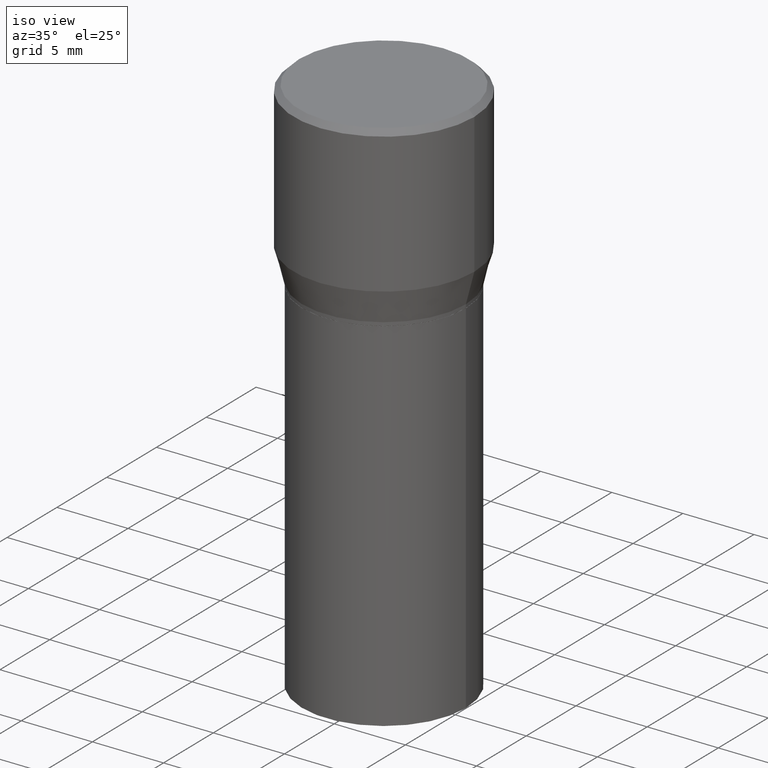
[diagram: clean part render]
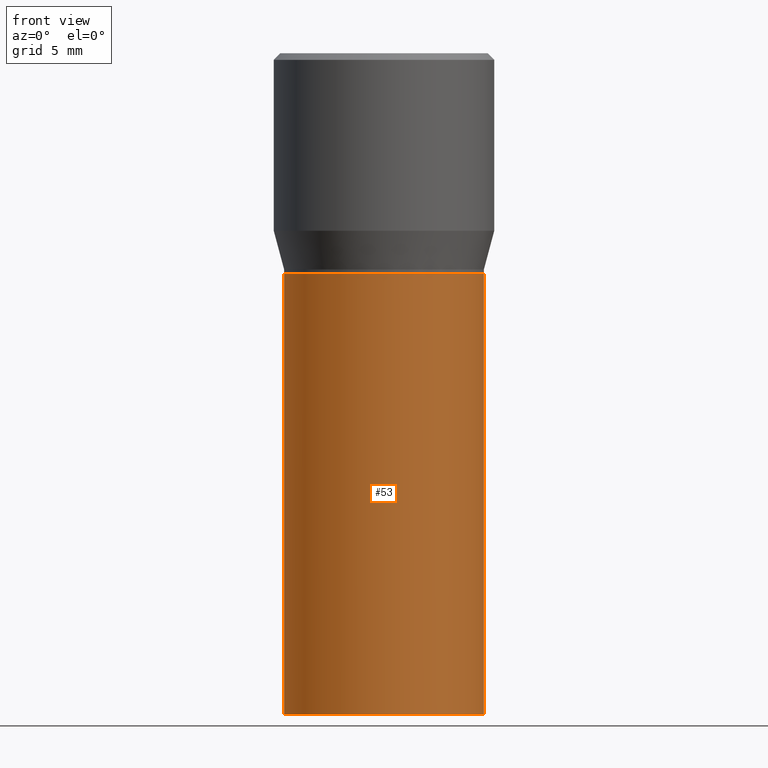
[diagram: tour spotlight — one face highlighted and labeled with its STEP entity id]
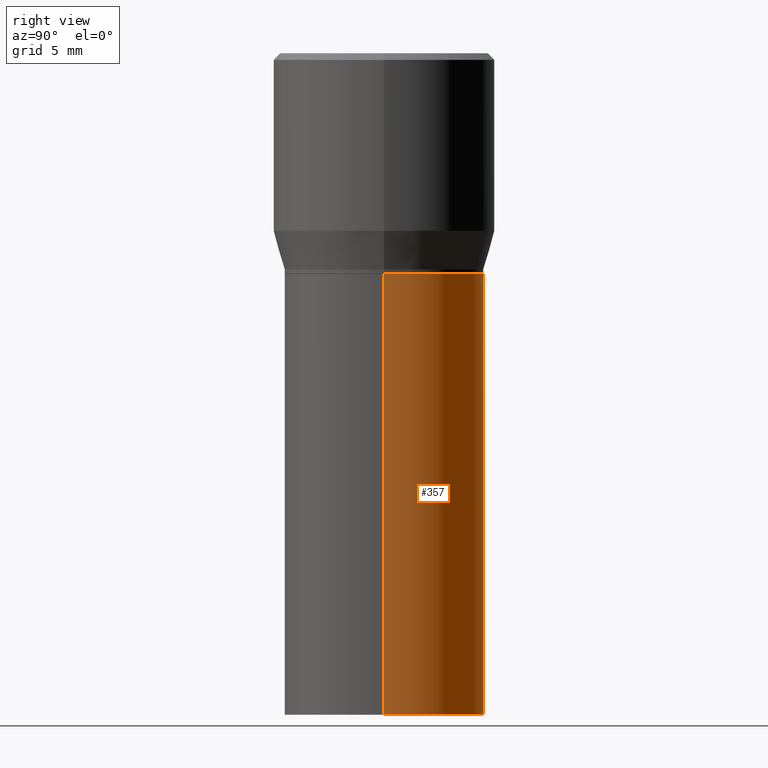
[diagram: tour spotlight — one face highlighted and labeled with its STEP entity id]
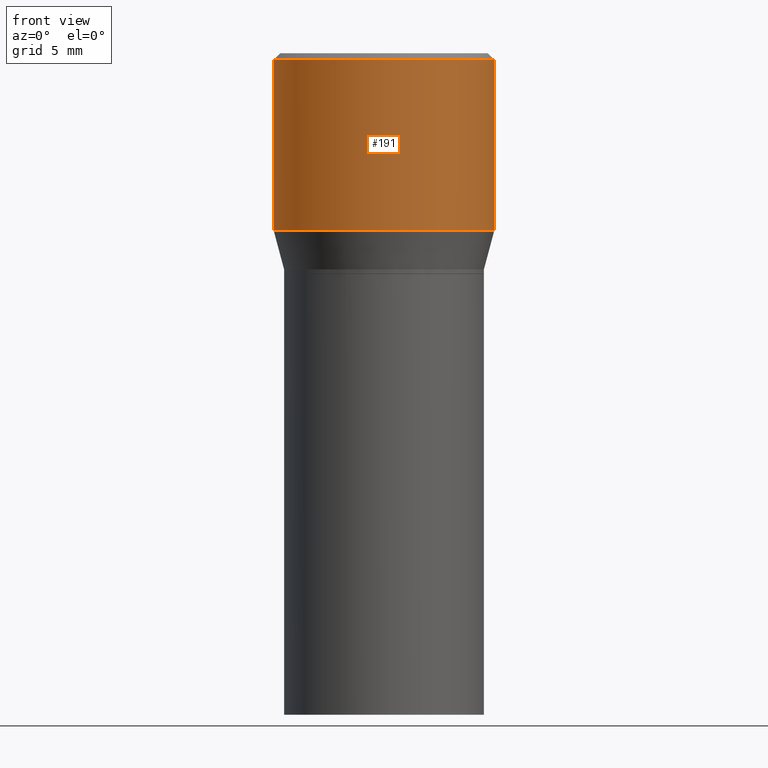
[diagram: tour spotlight — one face highlighted and labeled with its STEP entity id]
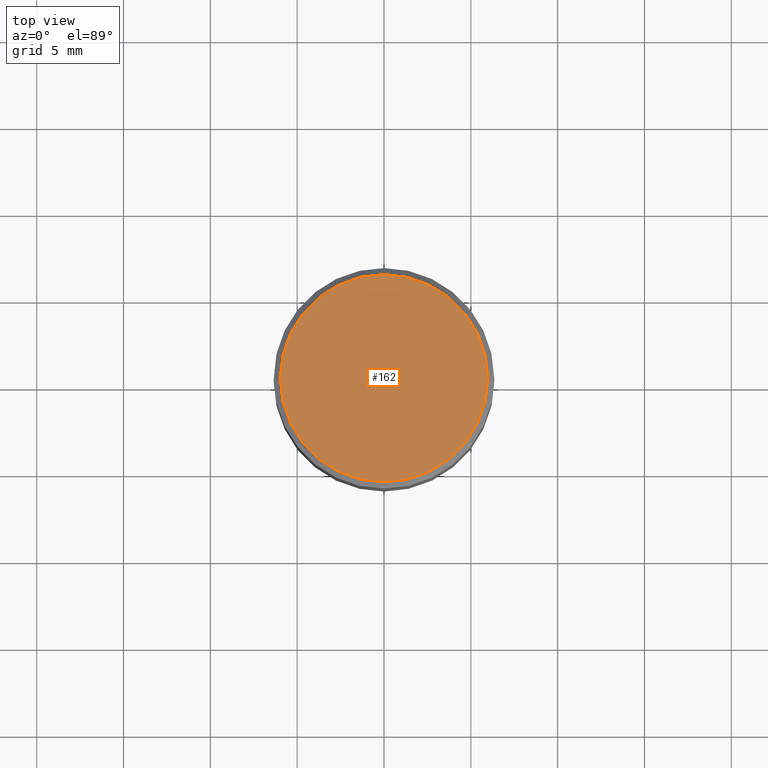
[diagram: tour spotlight — one face highlighted and labeled with its STEP entity id]
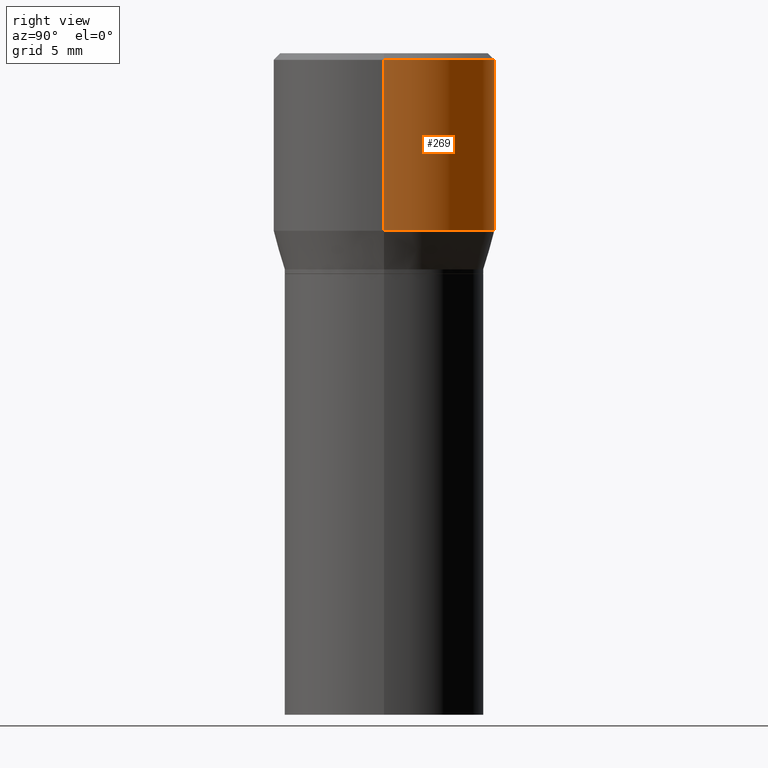
[diagram: tour spotlight — one face highlighted and labeled with its STEP entity id]
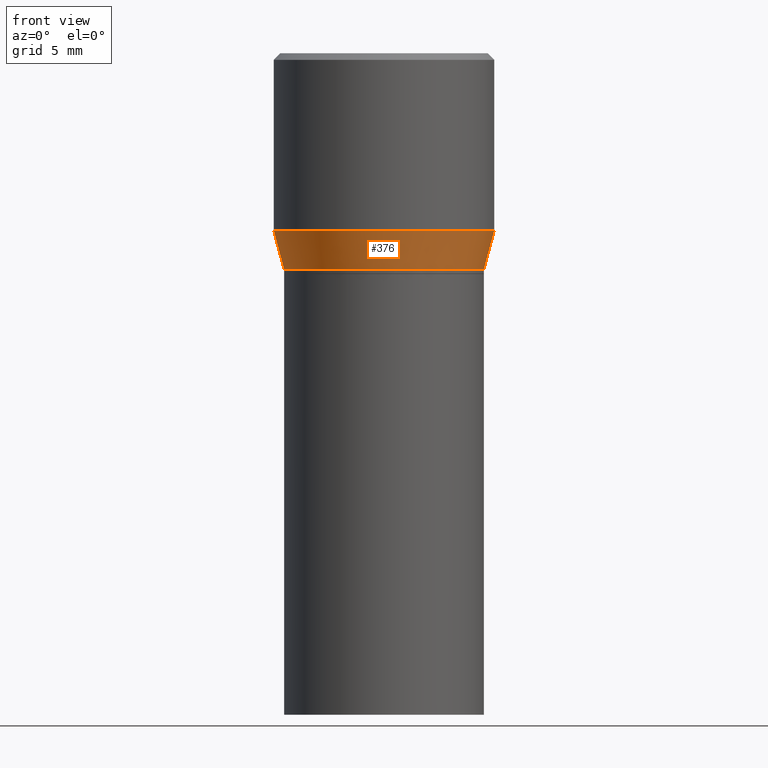
[diagram: tour spotlight — one face highlighted and labeled with its STEP entity id]
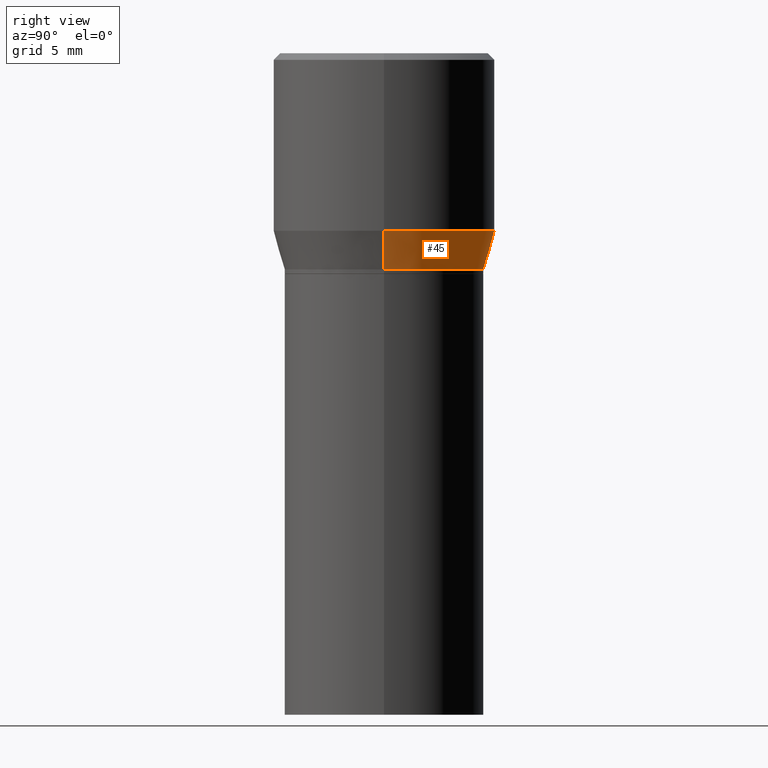
[diagram: tour spotlight — one face highlighted and labeled with its STEP entity id]
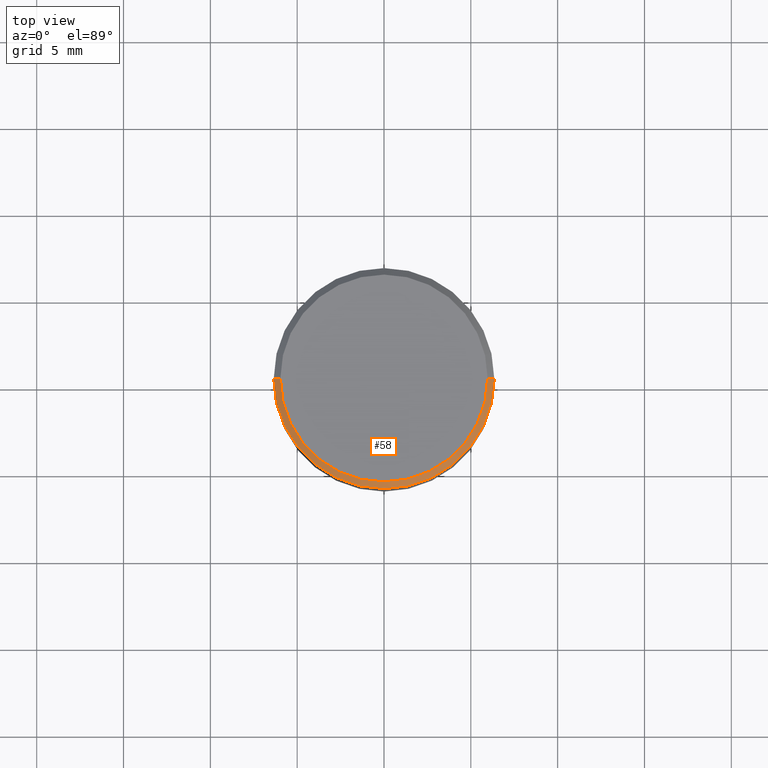
[diagram: tour spotlight — one face highlighted and labeled with its STEP entity id]
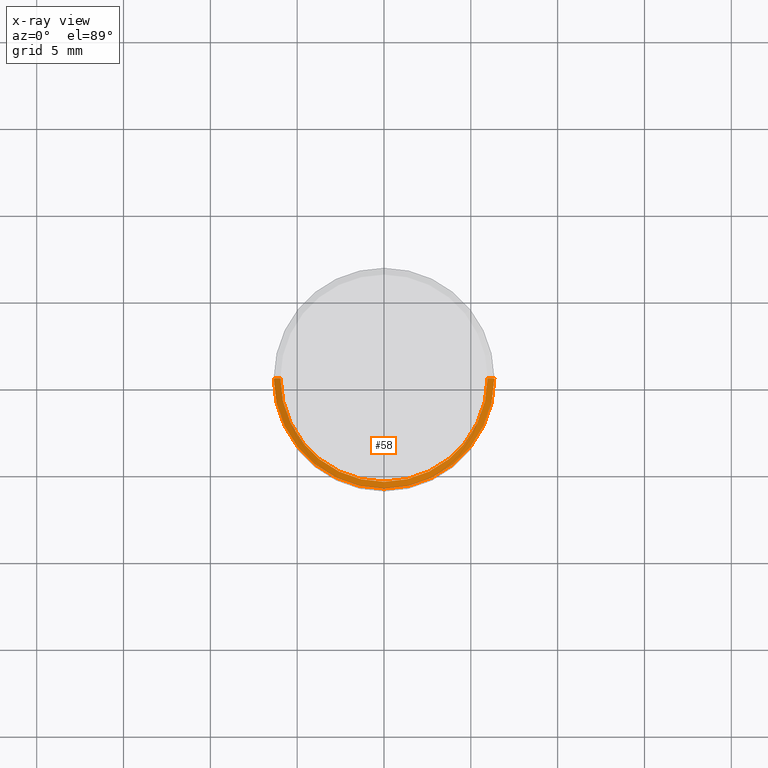
[diagram: x-ray of the same camera — body ghosted, this tour face saturated]
A machine part: a face-by-face anatomy tour. The part has 16 B-rep faces; the first image is the clean iso view, then the 8 largest visible faces are spotlighted one at a time (largest first), each with its STEP entity span.

Face 1 — front view, entity #53. In plain terms, the highlighted cylindrical surface (partial cylindrical patch) has radius 5.7544 mm, axis along (-0, 0, 1).
Definition (entity closure, byte-faithful):
#2 = ORIENTED_EDGE ( 'NONE', *, *, #431, .F. ) ;
#18 = DIRECTION ( 'NONE',  ( 1.000000000000000000, -6.982962677686267499E-15, 0.000000000000000000 ) ) ;
#19 = ORIENTED_EDGE ( 'NONE', *, *, #442, .T. ) ;
#22 = VECTOR ( 'NONE', #348, 39.37007874015748143 ) ;
#23 = EDGE_LOOP ( 'NONE', ( #50, #19, #336, #2 ) ) ;
#39 = CARTESIAN_POINT ( 'NONE',  ( 0.000000000000000000, 0.000000000000000000, 0.000000000000000000 ) ) ;
#50 = ORIENTED_EDGE ( 'NONE', *, *, #101, .F. ) ;
#51 = VERTEX_POINT ( 'NONE', #258 ) ;
#53 = ADVANCED_FACE ( 'NONE', ( #289 ), #255, .T. ) ;
#56 = AXIS2_PLACEMENT_3D ( 'NONE', #229, #223, #432 ) ;
#70 = LINE ( 'NONE', #417, #22 ) ;
#80 = CARTESIAN_POINT ( 'NONE',  ( -0.2265500000000000014, 1.609734567864506981E-15, -1.114384744697248863E-29 ) ) ;
#84 = DIRECTION ( 'NONE',  ( -2.445468806185136597E-29, 3.491481338843145583E-15, 1.000000000000000000 ) ) ;
#85 = VERTEX_POINT ( 'NONE', #422 ) ;
#96 = AXIS2_PLACEMENT_3D ( 'NONE', #221, #84, #18 ) ;
#101 = EDGE_CURVE ( 'NONE', #238, #419, #428, .T. ) ;
#159 = VECTOR ( 'NONE', #192, 39.37007874015748143 ) ;
#172 = DIRECTION ( 'NONE',  ( -2.445468806185136597E-29, 3.491481338843145583E-15, 1.000000000000000000 ) ) ;
#192 = DIRECTION ( 'NONE',  ( -2.445468806185136877E-29, 3.491481338843145188E-15, 1.000000000000000000 ) ) ;
#208 = CARTESIAN_POINT ( 'NONE',  ( -0.2265500000000000014, -1.881746770978639193E-15, -1.500000000000000222 ) ) ;
#221 = CARTESIAN_POINT ( 'NONE',  ( 3.668203209277704895E-29, -5.237222008264718177E-15, -1.500000000000000222 ) ) ;
#223 = DIRECTION ( 'NONE',  ( -2.445468806185136597E-29, 3.491481338843145583E-15, 1.000000000000000000 ) ) ;
#224 = CIRCLE ( 'NONE', #96, 0.2265500000000000014 ) ;
#229 = CARTESIAN_POINT ( 'NONE',  ( 1.222734403092568719E-29, -1.745740669421573186E-15, -0.5000000000000001110 ) ) ;
#231 = EDGE_CURVE ( 'NONE', #51, #85, #70, .T. ) ;
#238 = VERTEX_POINT ( 'NONE', #208 ) ;
#255 = CYLINDRICAL_SURFACE ( 'NONE', #361, 0.2265500000000000014 ) ;
#258 = CARTESIAN_POINT ( 'NONE',  ( 0.2265500000000000014, -6.819212202894542298E-15, -1.500000000000000222 ) ) ;
#289 = FACE_OUTER_BOUND ( 'NONE', #23, .T. ) ;
#336 = ORIENTED_EDGE ( 'NONE', *, *, #231, .T. ) ;
#348 = DIRECTION ( 'NONE',  ( -2.445468806185136877E-29, 3.491481338843145188E-15, 1.000000000000000000 ) ) ;
#361 = AXIS2_PLACEMENT_3D ( 'NONE', #39, #172, #388 ) ;
#362 = CARTESIAN_POINT ( 'NONE',  ( -0.2265500000000000014, -1.881746770978639193E-15, -0.5000000000000001110 ) ) ;
#388 = DIRECTION ( 'NONE',  ( 1.000000000000000000, -6.982962677686266711E-15, 4.876176775795935793E-29 ) ) ;
#417 = CARTESIAN_POINT ( 'NONE',  ( 0.2265500000000000014, -1.581990194629823726E-15, 1.104697848556569281E-29 ) ) ;
#419 = VERTEX_POINT ( 'NONE', #362 ) ;
#422 = CARTESIAN_POINT ( 'NONE',  ( 0.2265500000000000014, -3.327730864051397109E-15, -0.5000000000000001110 ) ) ;
#428 = LINE ( 'NONE', #80, #159 ) ;
#431 = EDGE_CURVE ( 'NONE', #419, #85, #438, .T. ) ;
#432 = DIRECTION ( 'NONE',  ( 1.000000000000000000, -6.982962677686266711E-15, 0.000000000000000000 ) ) ;
#438 = CIRCLE ( 'NONE', #56, 0.2265500000000000014 ) ;
#442 = EDGE_CURVE ( 'NONE', #238, #51, #224, .T. ) ;

Face 2 — right view, entity #357. In plain terms, the highlighted cylindrical surface (partial cylindrical patch) has radius 5.7544 mm, axis along (-0, 0, 1).
Definition (entity closure, byte-faithful):
#10 = CIRCLE ( 'NONE', #154, 0.2265500000000000014 ) ;
#12 = EDGE_CURVE ( 'NONE', #85, #419, #10, .T. ) ;
#22 = VECTOR ( 'NONE', #348, 39.37007874015748143 ) ;
#35 = FACE_OUTER_BOUND ( 'NONE', #283, .T. ) ;
#51 = VERTEX_POINT ( 'NONE', #258 ) ;
#70 = LINE ( 'NONE', #417, #22 ) ;
#80 = CARTESIAN_POINT ( 'NONE',  ( -0.2265500000000000014, 1.609734567864506981E-15, -1.114384744697248863E-29 ) ) ;
#85 = VERTEX_POINT ( 'NONE', #422 ) ;
#101 = EDGE_CURVE ( 'NONE', #238, #419, #428, .T. ) ;
#102 = CARTESIAN_POINT ( 'NONE',  ( 3.668203209277704895E-29, -5.237222008264718177E-15, -1.500000000000000222 ) ) ;
#112 = CYLINDRICAL_SURFACE ( 'NONE', #331, 0.2265500000000000014 ) ;
#154 = AXIS2_PLACEMENT_3D ( 'NONE', #458, #349, #247 ) ;
#159 = VECTOR ( 'NONE', #192, 39.37007874015748143 ) ;
#161 = CIRCLE ( 'NONE', #216, 0.2265500000000000014 ) ;
#171 = DIRECTION ( 'NONE',  ( -2.445468806185136597E-29, 3.491481338843145583E-15, 1.000000000000000000 ) ) ;
#180 = DIRECTION ( 'NONE',  ( -2.445468806185136597E-29, 3.491481338843145583E-15, 1.000000000000000000 ) ) ;
#192 = DIRECTION ( 'NONE',  ( -2.445468806185136877E-29, 3.491481338843145188E-15, 1.000000000000000000 ) ) ;
#199 = ORIENTED_EDGE ( 'NONE', *, *, #259, .T. ) ;
#208 = CARTESIAN_POINT ( 'NONE',  ( -0.2265500000000000014, -1.881746770978639193E-15, -1.500000000000000222 ) ) ;
#216 = AXIS2_PLACEMENT_3D ( 'NONE', #102, #171, #359 ) ;
#231 = EDGE_CURVE ( 'NONE', #51, #85, #70, .T. ) ;
#238 = VERTEX_POINT ( 'NONE', #208 ) ;
#247 = DIRECTION ( 'NONE',  ( 1.000000000000000000, -6.982962677686266711E-15, 0.000000000000000000 ) ) ;
#251 = CARTESIAN_POINT ( 'NONE',  ( 0.000000000000000000, 0.000000000000000000, 0.000000000000000000 ) ) ;
#254 = DIRECTION ( 'NONE',  ( 1.000000000000000000, -6.982962677686266711E-15, 4.876176775795935793E-29 ) ) ;
#258 = CARTESIAN_POINT ( 'NONE',  ( 0.2265500000000000014, -6.819212202894542298E-15, -1.500000000000000222 ) ) ;
#259 = EDGE_CURVE ( 'NONE', #51, #238, #161, .T. ) ;
#283 = EDGE_LOOP ( 'NONE', ( #199, #437, #410, #407 ) ) ;
#331 = AXIS2_PLACEMENT_3D ( 'NONE', #251, #180, #254 ) ;
#348 = DIRECTION ( 'NONE',  ( -2.445468806185136877E-29, 3.491481338843145188E-15, 1.000000000000000000 ) ) ;
#349 = DIRECTION ( 'NONE',  ( -2.445468806185136597E-29, 3.491481338843145583E-15, 1.000000000000000000 ) ) ;
#357 = ADVANCED_FACE ( 'NONE', ( #35 ), #112, .T. ) ;
#359 = DIRECTION ( 'NONE',  ( 1.000000000000000000, -6.982962677686267499E-15, 0.000000000000000000 ) ) ;
#362 = CARTESIAN_POINT ( 'NONE',  ( -0.2265500000000000014, -1.881746770978639193E-15, -0.5000000000000001110 ) ) ;
#407 = ORIENTED_EDGE ( 'NONE', *, *, #231, .F. ) ;
#410 = ORIENTED_EDGE ( 'NONE', *, *, #12, .F. ) ;
#417 = CARTESIAN_POINT ( 'NONE',  ( 0.2265500000000000014, -1.581990194629823726E-15, 1.104697848556569281E-29 ) ) ;
#419 = VERTEX_POINT ( 'NONE', #362 ) ;
#422 = CARTESIAN_POINT ( 'NONE',  ( 0.2265500000000000014, -3.327730864051397109E-15, -0.5000000000000001110 ) ) ;
#428 = LINE ( 'NONE', #80, #159 ) ;
#437 = ORIENTED_EDGE ( 'NONE', *, *, #101, .T. ) ;
#458 = CARTESIAN_POINT ( 'NONE',  ( 1.222734403092568719E-29, -1.745740669421573186E-15, -0.5000000000000001110 ) ) ;

Face 3 — front view, entity #191. In plain terms, the highlighted cylindrical surface (partial cylindrical patch) has radius 6.35 mm, axis along (-0, 0, 1).
Definition (entity closure, byte-faithful):
#4 = CARTESIAN_POINT ( 'NONE',  ( -0.2500000000000000000, 1.776356839400250465E-15, -1.229733772563726445E-29 ) ) ;
#5 = DIRECTION ( 'NONE',  ( 1.000000000000000000, -6.982962677686266711E-15, 0.000000000000000000 ) ) ;
#32 = CARTESIAN_POINT ( 'NONE',  ( 9.842606206466859638E-30, -1.405263310189985589E-15, -0.4024834085625100810 ) ) ;
#40 = DIRECTION ( 'NONE',  ( 1.000000000000000000, -6.982962677686265922E-15, 0.000000000000000000 ) ) ;
#46 = VERTEX_POINT ( 'NONE', #277 ) ;
#47 = EDGE_CURVE ( 'NONE', #194, #125, #282, .T. ) ;
#48 = VECTOR ( 'NONE', #75, 39.37007874015748143 ) ;
#61 = AXIS2_PLACEMENT_3D ( 'NONE', #354, #389, #5 ) ;
#75 = DIRECTION ( 'NONE',  ( -2.445468806185136877E-29, 3.491481338843145188E-15, 1.000000000000000000 ) ) ;
#89 = EDGE_LOOP ( 'NONE', ( #179, #160, #342, #318 ) ) ;
#110 = CARTESIAN_POINT ( 'NONE',  ( 0.2500000000000000000, -1.745740669421566678E-15, 1.219044193948983948E-29 ) ) ;
#125 = VERTEX_POINT ( 'NONE', #332 ) ;
#148 = EDGE_CURVE ( 'NONE', #46, #190, #334, .T. ) ;
#151 = CIRCLE ( 'NONE', #61, 0.2500000000000000000 ) ;
#160 = ORIENTED_EDGE ( 'NONE', *, *, #337, .T. ) ;
#179 = ORIENTED_EDGE ( 'NONE', *, *, #47, .F. ) ;
#186 = VECTOR ( 'NONE', #391, 39.37007874015748143 ) ;
#190 = VERTEX_POINT ( 'NONE', #207 ) ;
#191 = ADVANCED_FACE ( 'NONE', ( #217 ), #358, .T. ) ;
#193 = CIRCLE ( 'NONE', #284, 0.2500000000000000000 ) ;
#194 = VERTEX_POINT ( 'NONE', #249 ) ;
#207 = CARTESIAN_POINT ( 'NONE',  ( 0.2500000000000000000, -1.798112889504214151E-15, -0.01499999999999999944 ) ) ;
#217 = FACE_OUTER_BOUND ( 'NONE', #89, .T. ) ;
#218 = DIRECTION ( 'NONE',  ( -2.445468806185136597E-29, 3.491481338843145583E-15, 1.000000000000000000 ) ) ;
#243 = CARTESIAN_POINT ( 'NONE',  ( 0.000000000000000000, 0.000000000000000000, 0.000000000000000000 ) ) ;
#249 = CARTESIAN_POINT ( 'NONE',  ( -0.2500000000000000000, 3.710935292102651716E-16, -0.4024834085625100810 ) ) ;
#250 = EDGE_CURVE ( 'NONE', #125, #190, #151, .T. ) ;
#275 = AXIS2_PLACEMENT_3D ( 'NONE', #243, #346, #461 ) ;
#277 = CARTESIAN_POINT ( 'NONE',  ( 0.2500000000000000000, -3.151003979611552069E-15, -0.4024834085625100810 ) ) ;
#282 = LINE ( 'NONE', #4, #48 ) ;
#284 = AXIS2_PLACEMENT_3D ( 'NONE', #32, #218, #40 ) ;
#318 = ORIENTED_EDGE ( 'NONE', *, *, #250, .F. ) ;
#332 = CARTESIAN_POINT ( 'NONE',  ( -0.2500000000000000000, 1.047539074263934229E-15, -0.01499999999999999944 ) ) ;
#334 = LINE ( 'NONE', #110, #186 ) ;
#337 = EDGE_CURVE ( 'NONE', #194, #46, #193, .T. ) ;
#342 = ORIENTED_EDGE ( 'NONE', *, *, #148, .T. ) ;
#346 = DIRECTION ( 'NONE',  ( -2.445468806185136597E-29, 3.491481338843145583E-15, 1.000000000000000000 ) ) ;
#354 = CARTESIAN_POINT ( 'NONE',  ( 3.668203209277705088E-31, -5.237222008264718399E-17, -0.01499999999999999944 ) ) ;
#358 = CYLINDRICAL_SURFACE ( 'NONE', #275, 0.2500000000000000000 ) ;
#389 = DIRECTION ( 'NONE',  ( -2.445468806185136597E-29, 3.491481338843145583E-15, 1.000000000000000000 ) ) ;
#391 = DIRECTION ( 'NONE',  ( -2.445468806185136877E-29, 3.491481338843145188E-15, 1.000000000000000000 ) ) ;
#461 = DIRECTION ( 'NONE',  ( 1.000000000000000000, -6.982962677686266711E-15, 4.876176775795935793E-29 ) ) ;

Face 4 — top view, entity #162. In plain terms, the highlighted planar face has unit normal (0, -0, -1).
Definition (entity closure, byte-faithful):
#6 = DIRECTION ( 'NONE',  ( -1.000000000000000000, 6.982962677686265922E-15, -4.876176775795935793E-29 ) ) ;
#8 = AXIS2_PLACEMENT_3D ( 'NONE', #211, #246, #150 ) ;
#63 = CARTESIAN_POINT ( 'NONE',  ( 0.2349999999999999867, -1.689856874500919833E-15, 1.568636843340994368E-16 ) ) ;
#68 = AXIS2_PLACEMENT_3D ( 'NONE', #77, #222, #6 ) ;
#77 = CARTESIAN_POINT ( 'NONE',  ( 1.640996229256272519E-15, 0.2349999999999999867, -7.420662724610952803E-16 ) ) ;
#91 = AXIS2_PLACEMENT_3D ( 'NONE', #350, #387, #204 ) ;
#117 = FACE_OUTER_BOUND ( 'NONE', #209, .T. ) ;
#150 = DIRECTION ( 'NONE',  ( 1.000000000000000000, -6.982962677686267499E-15, 4.878549297894958458E-29 ) ) ;
#162 = ADVANCED_FACE ( 'NONE', ( #117 ), #261, .F. ) ;
#204 = DIRECTION ( 'NONE',  ( 1.000000000000000000, -6.982962677686267499E-15, 4.878549297894958458E-29 ) ) ;
#209 = EDGE_LOOP ( 'NONE', ( #369, #329 ) ) ;
#211 = CARTESIAN_POINT ( 'NONE',  ( -3.836052468622837406E-45, 5.476866265946494270E-31, 1.568636843340877764E-16 ) ) ;
#222 = DIRECTION ( 'NONE',  ( 2.438088387897960049E-29, -3.491481338843145188E-15, -1.000000000000000000 ) ) ;
#246 = DIRECTION ( 'NONE',  ( -2.445468806185136597E-29, 3.491481338843145583E-15, 1.000000000000000000 ) ) ;
#261 = PLANE ( 'NONE',  #68 ) ;
#292 = EDGE_CURVE ( 'NONE', #345, #310, #457, .T. ) ;
#310 = VERTEX_POINT ( 'NONE', #63 ) ;
#312 = CARTESIAN_POINT ( 'NONE',  ( -0.2349999999999999867, 1.667182339297596256E-15, 1.568636843340762393E-16 ) ) ;
#314 = EDGE_CURVE ( 'NONE', #310, #345, #392, .T. ) ;
#329 = ORIENTED_EDGE ( 'NONE', *, *, #314, .T. ) ;
#345 = VERTEX_POINT ( 'NONE', #312 ) ;
#350 = CARTESIAN_POINT ( 'NONE',  ( -3.836052468622837406E-45, 5.476866265946494270E-31, 1.568636843340877764E-16 ) ) ;
#369 = ORIENTED_EDGE ( 'NONE', *, *, #292, .T. ) ;
#387 = DIRECTION ( 'NONE',  ( -2.445468806185136597E-29, 3.491481338843145583E-15, 1.000000000000000000 ) ) ;
#392 = CIRCLE ( 'NONE', #91, 0.2349999999999999867 ) ;
#457 = CIRCLE ( 'NONE', #8, 0.2349999999999999867 ) ;

Face 5 — right view, entity #269. In plain terms, the highlighted cylindrical surface (partial cylindrical patch) has radius 6.35 mm, axis along (-0, 0, 1).
Definition (entity closure, byte-faithful):
#4 = CARTESIAN_POINT ( 'NONE',  ( -0.2500000000000000000, 1.776356839400250465E-15, -1.229733772563726445E-29 ) ) ;
#15 = ORIENTED_EDGE ( 'NONE', *, *, #183, .T. ) ;
#31 = DIRECTION ( 'NONE',  ( 1.000000000000000000, -6.982962677686265922E-15, 0.000000000000000000 ) ) ;
#46 = VERTEX_POINT ( 'NONE', #277 ) ;
#47 = EDGE_CURVE ( 'NONE', #194, #125, #282, .T. ) ;
#48 = VECTOR ( 'NONE', #75, 39.37007874015748143 ) ;
#69 = DIRECTION ( 'NONE',  ( -2.445468806185136597E-29, 3.491481338843145583E-15, 1.000000000000000000 ) ) ;
#75 = DIRECTION ( 'NONE',  ( -2.445468806185136877E-29, 3.491481338843145188E-15, 1.000000000000000000 ) ) ;
#103 = ORIENTED_EDGE ( 'NONE', *, *, #47, .T. ) ;
#106 = CARTESIAN_POINT ( 'NONE',  ( 9.842606206466859638E-30, -1.405263310189985589E-15, -0.4024834085625100810 ) ) ;
#110 = CARTESIAN_POINT ( 'NONE',  ( 0.2500000000000000000, -1.745740669421566678E-15, 1.219044193948983948E-29 ) ) ;
#125 = VERTEX_POINT ( 'NONE', #332 ) ;
#132 = CIRCLE ( 'NONE', #386, 0.2500000000000000000 ) ;
#138 = EDGE_CURVE ( 'NONE', #190, #125, #132, .T. ) ;
#143 = FACE_OUTER_BOUND ( 'NONE', #321, .T. ) ;
#148 = EDGE_CURVE ( 'NONE', #46, #190, #334, .T. ) ;
#183 = EDGE_CURVE ( 'NONE', #46, #194, #210, .T. ) ;
#186 = VECTOR ( 'NONE', #391, 39.37007874015748143 ) ;
#190 = VERTEX_POINT ( 'NONE', #207 ) ;
#194 = VERTEX_POINT ( 'NONE', #249 ) ;
#207 = CARTESIAN_POINT ( 'NONE',  ( 0.2500000000000000000, -1.798112889504214151E-15, -0.01499999999999999944 ) ) ;
#210 = CIRCLE ( 'NONE', #240, 0.2500000000000000000 ) ;
#234 = DIRECTION ( 'NONE',  ( 1.000000000000000000, -6.982962677686266711E-15, 0.000000000000000000 ) ) ;
#240 = AXIS2_PLACEMENT_3D ( 'NONE', #106, #69, #31 ) ;
#249 = CARTESIAN_POINT ( 'NONE',  ( -0.2500000000000000000, 3.710935292102651716E-16, -0.4024834085625100810 ) ) ;
#269 = ADVANCED_FACE ( 'NONE', ( #143 ), #462, .T. ) ;
#277 = CARTESIAN_POINT ( 'NONE',  ( 0.2500000000000000000, -3.151003979611552069E-15, -0.4024834085625100810 ) ) ;
#281 = CARTESIAN_POINT ( 'NONE',  ( 0.000000000000000000, 0.000000000000000000, 0.000000000000000000 ) ) ;
#282 = LINE ( 'NONE', #4, #48 ) ;
#287 = CARTESIAN_POINT ( 'NONE',  ( 3.668203209277705088E-31, -5.237222008264718399E-17, -0.01499999999999999944 ) ) ;
#300 = ORIENTED_EDGE ( 'NONE', *, *, #148, .F. ) ;
#321 = EDGE_LOOP ( 'NONE', ( #15, #103, #453, #300 ) ) ;
#332 = CARTESIAN_POINT ( 'NONE',  ( -0.2500000000000000000, 1.047539074263934229E-15, -0.01499999999999999944 ) ) ;
#334 = LINE ( 'NONE', #110, #186 ) ;
#379 = DIRECTION ( 'NONE',  ( 1.000000000000000000, -6.982962677686266711E-15, 4.876176775795935793E-29 ) ) ;
#386 = AXIS2_PLACEMENT_3D ( 'NONE', #287, #440, #234 ) ;
#391 = DIRECTION ( 'NONE',  ( -2.445468806185136877E-29, 3.491481338843145188E-15, 1.000000000000000000 ) ) ;
#420 = DIRECTION ( 'NONE',  ( -2.445468806185136597E-29, 3.491481338843145583E-15, 1.000000000000000000 ) ) ;
#430 = AXIS2_PLACEMENT_3D ( 'NONE', #281, #420, #379 ) ;
#440 = DIRECTION ( 'NONE',  ( -2.445468806185136597E-29, 3.491481338843145583E-15, 1.000000000000000000 ) ) ;
#453 = ORIENTED_EDGE ( 'NONE', *, *, #138, .F. ) ;
#462 = CYLINDRICAL_SURFACE ( 'NONE', #430, 0.2500000000000000000 ) ;

Face 6 — front view, entity #376. In plain terms, the highlighted conical surface has half-angle 15 deg.
Definition (entity closure, byte-faithful):
#14 = ORIENTED_EDGE ( 'NONE', *, *, #337, .F. ) ;
#32 = CARTESIAN_POINT ( 'NONE',  ( 9.842606206466859638E-30, -1.405263310189985589E-15, -0.4024834085625100810 ) ) ;
#37 = CARTESIAN_POINT ( 'NONE',  ( 1.198279715030717173E-29, -1.710825856033141537E-15, -0.4900000000000001021 ) ) ;
#40 = DIRECTION ( 'NONE',  ( 1.000000000000000000, -6.982962677686265922E-15, 0.000000000000000000 ) ) ;
#44 = DIRECTION ( 'NONE',  ( 0.2588190451025214611, 1.565188264969621573E-15, 0.9659258262890682012 ) ) ;
#46 = VERTEX_POINT ( 'NONE', #277 ) ;
#60 = CARTESIAN_POINT ( 'NONE',  ( 0.2265499999999999736, -3.292816050662964671E-15, -0.4900000000000001021 ) ) ;
#64 = VERTEX_POINT ( 'NONE', #60 ) ;
#88 = DIRECTION ( 'NONE',  ( 1.000000000000000000, -6.982962677686265922E-15, 0.000000000000000000 ) ) ;
#93 = EDGE_CURVE ( 'NONE', #215, #194, #434, .T. ) ;
#133 = EDGE_CURVE ( 'NONE', #215, #64, #452, .T. ) ;
#137 = EDGE_LOOP ( 'NONE', ( #445, #212, #402, #14 ) ) ;
#141 = FACE_OUTER_BOUND ( 'NONE', #137, .T. ) ;
#193 = CIRCLE ( 'NONE', #284, 0.2500000000000000000 ) ;
#194 = VERTEX_POINT ( 'NONE', #249 ) ;
#201 = CARTESIAN_POINT ( 'NONE',  ( -0.2265499999999999736, 1.350011205208151600E-16, -0.4900000000000001021 ) ) ;
#212 = ORIENTED_EDGE ( 'NONE', *, *, #133, .T. ) ;
#215 = VERTEX_POINT ( 'NONE', #201 ) ;
#218 = DIRECTION ( 'NONE',  ( -2.445468806185136597E-29, 3.491481338843145583E-15, 1.000000000000000000 ) ) ;
#226 = CARTESIAN_POINT ( 'NONE',  ( -0.2265499999999999736, -1.010912881686348269E-16, -0.4900000000000001021 ) ) ;
#244 = DIRECTION ( 'NONE',  ( 1.000000000000000000, -6.982962677686265922E-15, 0.000000000000000000 ) ) ;
#249 = CARTESIAN_POINT ( 'NONE',  ( -0.2500000000000000000, 3.710935292102651716E-16, -0.4024834085625100810 ) ) ;
#271 = AXIS2_PLACEMENT_3D ( 'NONE', #444, #404, #88 ) ;
#277 = CARTESIAN_POINT ( 'NONE',  ( 0.2500000000000000000, -3.151003979611552069E-15, -0.4024834085625100810 ) ) ;
#284 = AXIS2_PLACEMENT_3D ( 'NONE', #32, #218, #40 ) ;
#291 = CARTESIAN_POINT ( 'NONE',  ( 0.2265499999999999736, -3.292816050662964671E-15, -0.4900000000000001021 ) ) ;
#324 = AXIS2_PLACEMENT_3D ( 'NONE', #37, #414, #244 ) ;
#325 = LINE ( 'NONE', #291, #356 ) ;
#337 = EDGE_CURVE ( 'NONE', #194, #46, #193, .T. ) ;
#356 = VECTOR ( 'NONE', #44, 39.37007874015747433 ) ;
#367 = VECTOR ( 'NONE', #433, 39.37007874015747433 ) ;
#376 = ADVANCED_FACE ( 'NONE', ( #141 ), #405, .T. ) ;
#402 = ORIENTED_EDGE ( 'NONE', *, *, #464, .T. ) ;
#404 = DIRECTION ( 'NONE',  ( -2.445468806185136597E-29, 3.491481338843145583E-15, 1.000000000000000000 ) ) ;
#405 = CONICAL_SURFACE ( 'NONE', #324, 0.2265499999999999736, 0.2617993877991501295 ) ;
#414 = DIRECTION ( 'NONE',  ( -2.445468806185136597E-29, 3.491481338843145583E-15, 1.000000000000000000 ) ) ;
#433 = DIRECTION ( 'NONE',  ( -0.2588190451025214611, 5.211531920934551042E-15, 0.9659258262890682012 ) ) ;
#434 = LINE ( 'NONE', #226, #367 ) ;
#444 = CARTESIAN_POINT ( 'NONE',  ( 1.198279715030717173E-29, -1.710825856033141537E-15, -0.4900000000000001021 ) ) ;
#445 = ORIENTED_EDGE ( 'NONE', *, *, #93, .F. ) ;
#452 = CIRCLE ( 'NONE', #271, 0.2265499999999999736 ) ;
#464 = EDGE_CURVE ( 'NONE', #64, #46, #325, .T. ) ;

Face 7 — right view, entity #45. In plain terms, the highlighted conical surface has half-angle 15 deg.
Definition (entity closure, byte-faithful):
#1 = CARTESIAN_POINT ( 'NONE',  ( 1.198279715030717173E-29, -1.710825856033141537E-15, -0.4900000000000001021 ) ) ;
#27 = ORIENTED_EDGE ( 'NONE', *, *, #183, .F. ) ;
#31 = DIRECTION ( 'NONE',  ( 1.000000000000000000, -6.982962677686265922E-15, 0.000000000000000000 ) ) ;
#44 = DIRECTION ( 'NONE',  ( 0.2588190451025214611, 1.565188264969621573E-15, 0.9659258262890682012 ) ) ;
#45 = ADVANCED_FACE ( 'NONE', ( #168 ), #253, .T. ) ;
#46 = VERTEX_POINT ( 'NONE', #277 ) ;
#57 = ORIENTED_EDGE ( 'NONE', *, *, #93, .T. ) ;
#60 = CARTESIAN_POINT ( 'NONE',  ( 0.2265499999999999736, -3.292816050662964671E-15, -0.4900000000000001021 ) ) ;
#64 = VERTEX_POINT ( 'NONE', #60 ) ;
#69 = DIRECTION ( 'NONE',  ( -2.445468806185136597E-29, 3.491481338843145583E-15, 1.000000000000000000 ) ) ;
#93 = EDGE_CURVE ( 'NONE', #215, #194, #434, .T. ) ;
#98 = AXIS2_PLACEMENT_3D ( 'NONE', #1, #286, #355 ) ;
#106 = CARTESIAN_POINT ( 'NONE',  ( 9.842606206466859638E-30, -1.405263310189985589E-15, -0.4024834085625100810 ) ) ;
#136 = DIRECTION ( 'NONE',  ( -2.445468806185136597E-29, 3.491481338843145583E-15, 1.000000000000000000 ) ) ;
#166 = CIRCLE ( 'NONE', #296, 0.2265499999999999736 ) ;
#168 = FACE_OUTER_BOUND ( 'NONE', #385, .T. ) ;
#183 = EDGE_CURVE ( 'NONE', #46, #194, #210, .T. ) ;
#194 = VERTEX_POINT ( 'NONE', #249 ) ;
#201 = CARTESIAN_POINT ( 'NONE',  ( -0.2265499999999999736, 1.350011205208151600E-16, -0.4900000000000001021 ) ) ;
#210 = CIRCLE ( 'NONE', #240, 0.2500000000000000000 ) ;
#215 = VERTEX_POINT ( 'NONE', #201 ) ;
#220 = EDGE_CURVE ( 'NONE', #64, #215, #166, .T. ) ;
#226 = CARTESIAN_POINT ( 'NONE',  ( -0.2265499999999999736, -1.010912881686348269E-16, -0.4900000000000001021 ) ) ;
#240 = AXIS2_PLACEMENT_3D ( 'NONE', #106, #69, #31 ) ;
#249 = CARTESIAN_POINT ( 'NONE',  ( -0.2500000000000000000, 3.710935292102651716E-16, -0.4024834085625100810 ) ) ;
#253 = CONICAL_SURFACE ( 'NONE', #98, 0.2265499999999999736, 0.2617993877991501295 ) ;
#276 = DIRECTION ( 'NONE',  ( 1.000000000000000000, -6.982962677686265922E-15, 0.000000000000000000 ) ) ;
#277 = CARTESIAN_POINT ( 'NONE',  ( 0.2500000000000000000, -3.151003979611552069E-15, -0.4024834085625100810 ) ) ;
#286 = DIRECTION ( 'NONE',  ( -2.445468806185136597E-29, 3.491481338843145583E-15, 1.000000000000000000 ) ) ;
#291 = CARTESIAN_POINT ( 'NONE',  ( 0.2265499999999999736, -3.292816050662964671E-15, -0.4900000000000001021 ) ) ;
#295 = ORIENTED_EDGE ( 'NONE', *, *, #220, .T. ) ;
#296 = AXIS2_PLACEMENT_3D ( 'NONE', #455, #136, #276 ) ;
#325 = LINE ( 'NONE', #291, #356 ) ;
#355 = DIRECTION ( 'NONE',  ( 1.000000000000000000, -6.982962677686265922E-15, 0.000000000000000000 ) ) ;
#356 = VECTOR ( 'NONE', #44, 39.37007874015747433 ) ;
#367 = VECTOR ( 'NONE', #433, 39.37007874015747433 ) ;
#385 = EDGE_LOOP ( 'NONE', ( #295, #57, #27, #443 ) ) ;
#433 = DIRECTION ( 'NONE',  ( -0.2588190451025214611, 5.211531920934551042E-15, 0.9659258262890682012 ) ) ;
#434 = LINE ( 'NONE', #226, #367 ) ;
#443 = ORIENTED_EDGE ( 'NONE', *, *, #464, .F. ) ;
#455 = CARTESIAN_POINT ( 'NONE',  ( 1.198279715030717173E-29, -1.710825856033141537E-15, -0.4900000000000001021 ) ) ;
#464 = EDGE_CURVE ( 'NONE', #64, #46, #325, .T. ) ;

Face 8 — top view, entity #58. An x-ray twin of the same camera follows (body ghosted, this face saturated) — the face is partly hidden behind the body. In plain terms, the highlighted conical surface has half-angle 45 deg.
Definition (entity closure, byte-faithful):
#5 = DIRECTION ( 'NONE',  ( 1.000000000000000000, -6.982962677686266711E-15, 0.000000000000000000 ) ) ;
#8 = AXIS2_PLACEMENT_3D ( 'NONE', #211, #246, #150 ) ;
#11 = VECTOR ( 'NONE', #360, 39.37007874015748143 ) ;
#26 = CARTESIAN_POINT ( 'NONE',  ( 3.668203209277705088E-31, -5.237222008264718399E-17, -0.01499999999999999944 ) ) ;
#52 = VECTOR ( 'NONE', #104, 39.37007874015748143 ) ;
#54 = AXIS2_PLACEMENT_3D ( 'NONE', #26, #164, #380 ) ;
#58 = ADVANCED_FACE ( 'NONE', ( #341 ), #306, .T. ) ;
#61 = AXIS2_PLACEMENT_3D ( 'NONE', #354, #389, #5 ) ;
#63 = CARTESIAN_POINT ( 'NONE',  ( 0.2349999999999999867, -1.689856874500919833E-15, 1.568636843340994368E-16 ) ) ;
#66 = LINE ( 'NONE', #285, #52 ) ;
#100 = EDGE_LOOP ( 'NONE', ( #236, #339, #301, #233 ) ) ;
#104 = DIRECTION ( 'NONE',  ( -0.7071067811865441310, 2.468850131082221167E-15, -0.7071067811865509034 ) ) ;
#125 = VERTEX_POINT ( 'NONE', #332 ) ;
#128 = EDGE_CURVE ( 'NONE', #310, #190, #393, .T. ) ;
#150 = DIRECTION ( 'NONE',  ( 1.000000000000000000, -6.982962677686267499E-15, 4.878549297894958458E-29 ) ) ;
#151 = CIRCLE ( 'NONE', #61, 0.2500000000000000000 ) ;
#164 = DIRECTION ( 'NONE',  ( 2.445468806185136597E-29, -3.491481338843145583E-15, -1.000000000000000000 ) ) ;
#190 = VERTEX_POINT ( 'NONE', #207 ) ;
#207 = CARTESIAN_POINT ( 'NONE',  ( 0.2500000000000000000, -1.798112889504214151E-15, -0.01499999999999999944 ) ) ;
#211 = CARTESIAN_POINT ( 'NONE',  ( -3.836052468622837406E-45, 5.476866265946494270E-31, 1.568636843340877764E-16 ) ) ;
#233 = ORIENTED_EDGE ( 'NONE', *, *, #250, .T. ) ;
#236 = ORIENTED_EDGE ( 'NONE', *, *, #128, .F. ) ;
#246 = DIRECTION ( 'NONE',  ( -2.445468806185136597E-29, 3.491481338843145583E-15, 1.000000000000000000 ) ) ;
#250 = EDGE_CURVE ( 'NONE', #125, #190, #151, .T. ) ;
#285 = CARTESIAN_POINT ( 'NONE',  ( -0.2500000000000000000, 1.693368449338919401E-15, -0.01499999999999999944 ) ) ;
#292 = EDGE_CURVE ( 'NONE', #345, #310, #457, .T. ) ;
#301 = ORIENTED_EDGE ( 'NONE', *, *, #343, .T. ) ;
#306 = CONICAL_SURFACE ( 'NONE', #54, 0.2500000000000000000, 0.7853981633974435050 ) ;
#310 = VERTEX_POINT ( 'NONE', #63 ) ;
#312 = CARTESIAN_POINT ( 'NONE',  ( -0.2349999999999999867, 1.667182339297596256E-15, 1.568636843340762393E-16 ) ) ;
#332 = CARTESIAN_POINT ( 'NONE',  ( -0.2500000000000000000, 1.047539074263934229E-15, -0.01499999999999999944 ) ) ;
#339 = ORIENTED_EDGE ( 'NONE', *, *, #292, .F. ) ;
#341 = FACE_OUTER_BOUND ( 'NONE', #100, .T. ) ;
#343 = EDGE_CURVE ( 'NONE', #345, #125, #66, .T. ) ;
#345 = VERTEX_POINT ( 'NONE', #312 ) ;
#354 = CARTESIAN_POINT ( 'NONE',  ( 3.668203209277705088E-31, -5.237222008264718399E-17, -0.01499999999999999944 ) ) ;
#360 = DIRECTION ( 'NONE',  ( 0.7071067811865441310, -7.319954787623245001E-15, -0.7071067811865509034 ) ) ;
#380 = DIRECTION ( 'NONE',  ( -1.000000000000000000, 6.982962677686266711E-15, 0.000000000000000000 ) ) ;
#389 = DIRECTION ( 'NONE',  ( -2.445468806185136597E-29, 3.491481338843145583E-15, 1.000000000000000000 ) ) ;
#393 = LINE ( 'NONE', #429, #11 ) ;
#429 = CARTESIAN_POINT ( 'NONE',  ( 0.2500000000000000000, -1.767496719525530167E-15, -0.01499999999999999944 ) ) ;
#457 = CIRCLE ( 'NONE', #8, 0.2349999999999999867 ) ;